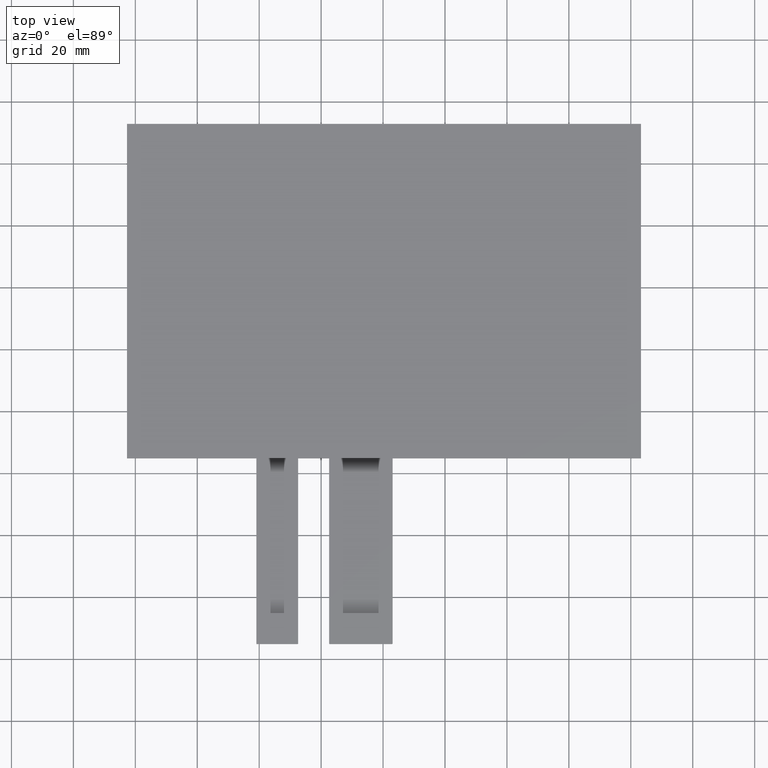
[diagram: clean part render]
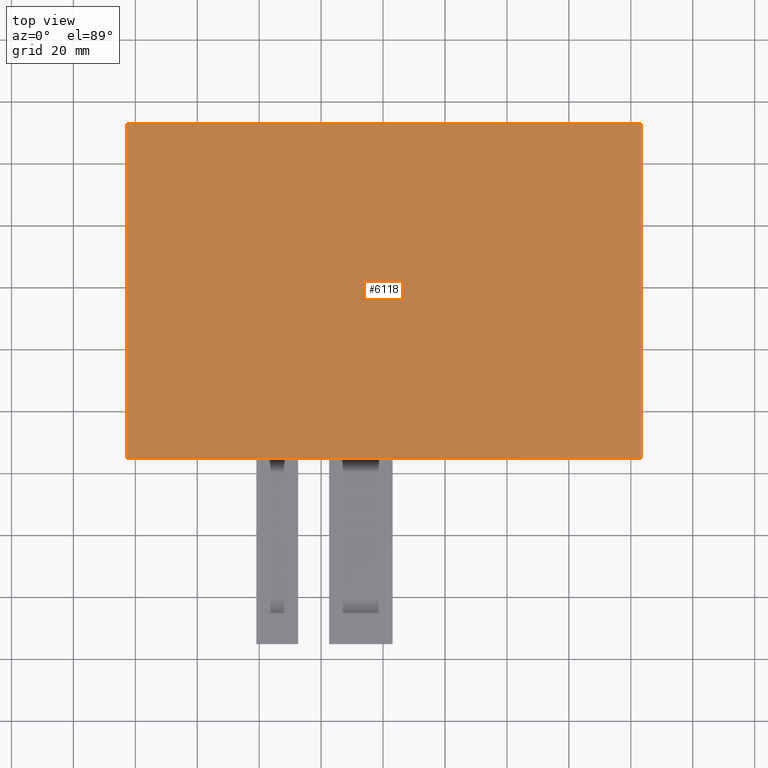
[diagram: same view with one face highlighted and labeled with its STEP entity id]
A machine part, top view. The second image highlights one B-rep face of the part: STEP entity #6118.
In plain terms, the highlighted planar face has unit normal (0, 0, 1).
Its self-contained STEP definition (entity closure, byte-faithful):
#348=PLANE('',#6438);
#640=FACE_OUTER_BOUND('',#934,.T.);
#934=EDGE_LOOP('',(#5819,#5820,#5821,#5822));
#1779=LINE('',#9607,#2635);
#1783=LINE('',#9615,#2639);
#1786=LINE('',#9621,#2642);
#1789=LINE('',#9626,#2645);
#2635=VECTOR('',#7875,10.);
#2639=VECTOR('',#7881,10.);
#2642=VECTOR('',#7886,10.);
#2645=VECTOR('',#7891,10.);
#3223=VERTEX_POINT('',#9605);
#3224=VERTEX_POINT('',#9606);
#3227=VERTEX_POINT('',#9614);
#3229=VERTEX_POINT('',#9620);
#4083=EDGE_CURVE('',#3223,#3224,#1779,.T.);
#4087=EDGE_CURVE('',#3224,#3227,#1783,.T.);
#4090=EDGE_CURVE('',#3227,#3229,#1786,.T.);
#4093=EDGE_CURVE('',#3229,#3223,#1789,.T.);
#5819=ORIENTED_EDGE('',*,*,#4093,.T.);
#5820=ORIENTED_EDGE('',*,*,#4083,.T.);
#5821=ORIENTED_EDGE('',*,*,#4087,.T.);
#5822=ORIENTED_EDGE('',*,*,#4090,.T.);
#6118=ADVANCED_FACE('',(#640),#348,.T.);
#6438=AXIS2_PLACEMENT_3D('',#9629,#7895,#7896);
#7875=DIRECTION('',(1.64477485129653E-16,-1.,0.));
#7881=DIRECTION('',(1.,5.35047240783208E-17,0.));
#7886=DIRECTION('',(-1.64477485129653E-16,1.,0.));
#7891=DIRECTION('',(-1.,0.,0.));
#7895=DIRECTION('center_axis',(0.,0.,1.));
#7896=DIRECTION('ref_axis',(1.,0.,0.));
#9605=CARTESIAN_POINT('',(-82.7,52.88,0.));
#9606=CARTESIAN_POINT('',(-82.7,-55.12,0.));
#9607=CARTESIAN_POINT('',(-82.7,52.88,0.));
#9614=CARTESIAN_POINT('',(83.3,-55.12,0.));
#9615=CARTESIAN_POINT('',(-82.7,-55.12,0.));
#9620=CARTESIAN_POINT('',(83.3,52.88,0.));
#9621=CARTESIAN_POINT('',(83.3,-55.12,0.));
#9626=CARTESIAN_POINT('',(83.3,52.88,0.));
#9629=CARTESIAN_POINT('Origin',(0.0499999999999812,0.055000000000005,0.));